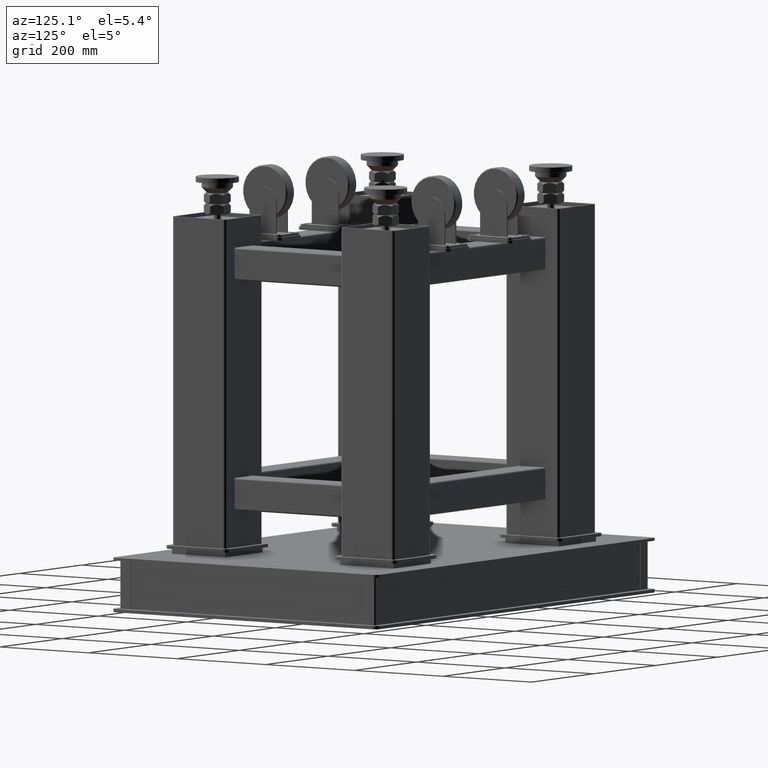
[diagram: clean part render]
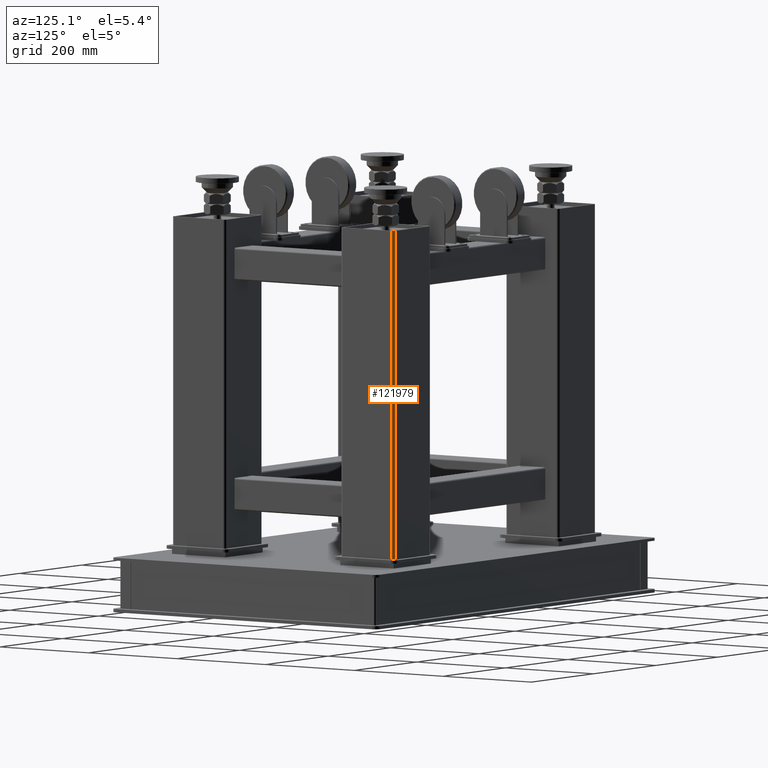
[diagram: same view with one face highlighted and labeled with its STEP entity id]
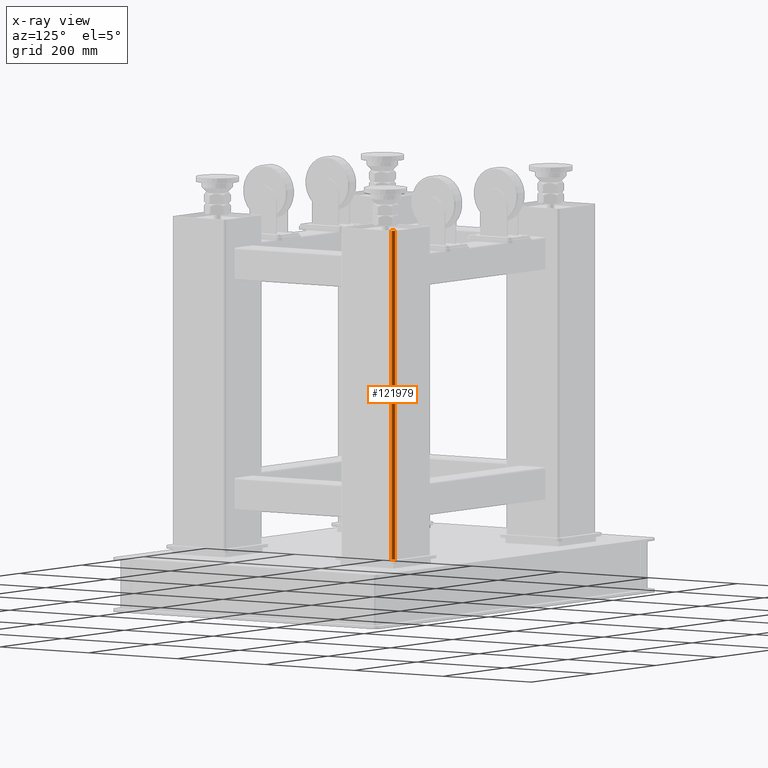
[diagram: x-ray of the same camera — body ghosted, the highlighted face saturated]
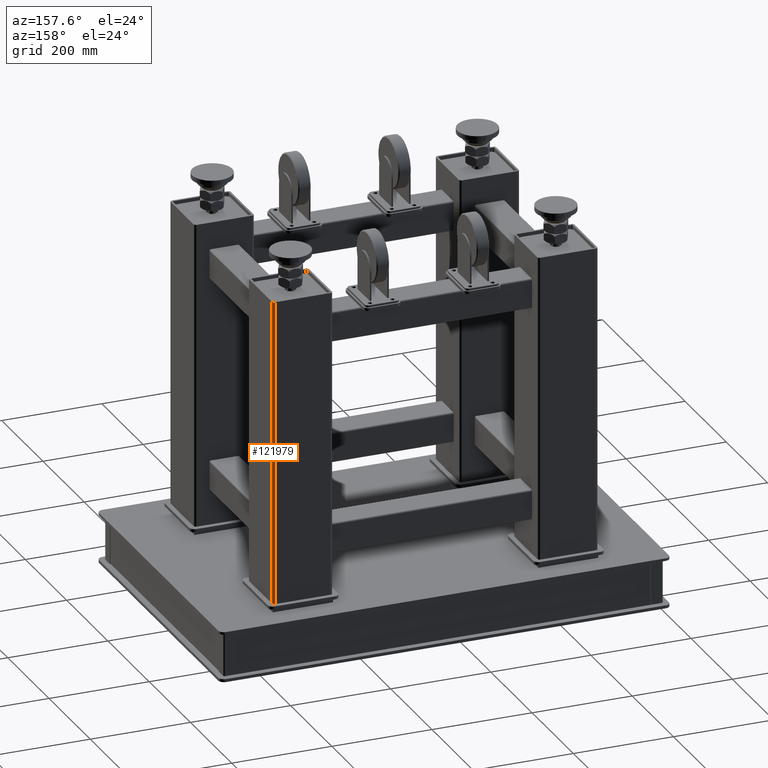
[diagram: same view with one face highlighted and labeled with its STEP entity id]
A machine part, auxiliary view. The second image highlights one B-rep face of the part: STEP entity #121979.
The next image is the same camera in x-ray: the body ghosted, the highlighted face saturated — about 0% of this face is hidden behind the body in this view.
A second angle (auxiliary view) of the same face is appended — the face is thin or edge-on in the first view.
In plain terms, the highlighted cylindrical surface (edge-blend (fillet) strip) has radius 5 mm, axis along (-0, -0, -1).
Its self-contained STEP definition (entity closure, byte-faithful):
#2183 = AXIS2_PLACEMENT_3D ( 'NONE', #120103, #71629, #14176 ) ;
#4592 = ORIENTED_EDGE ( 'NONE', *, *, #110936, .T. ) ;
#14176 = DIRECTION ( 'NONE',  ( -1.000000000000000000, 0.000000000000000000, 0.000000000000000000 ) ) ;
#15644 = FACE_OUTER_BOUND ( 'NONE', #74096, .T. ) ;
#17891 = DIRECTION ( 'NONE',  ( -1.000000000000000000, 0.000000000000000000, 0.000000000000000000 ) ) ;
#23935 = ORIENTED_EDGE ( 'NONE', *, *, #55228, .F. ) ;
#26554 = CYLINDRICAL_SURFACE ( 'NONE', #51657, 5.000000000000004441 ) ;
#37530 = VERTEX_POINT ( 'NONE', #67026 ) ;
#37836 = CARTESIAN_POINT ( 'NONE',  ( -432.3579775280901458, 447.9244194756556112, -345.5000000000000568 ) ) ;
#39051 = DIRECTION ( 'NONE',  ( -0.000000000000000000, -0.000000000000000000, -1.000000000000000000 ) ) ;
#47260 = DIRECTION ( 'NONE',  ( 0.000000000000000000, 0.000000000000000000, 1.000000000000000000 ) ) ;
#47587 = EDGE_CURVE ( 'NONE', #37530, #100153, #49885, .T. ) ;
#49113 = CIRCLE ( 'NONE', #2183, 5.000000000000004441 ) ;
#49885 = LINE ( 'NONE', #98879, #79077 ) ;
#51657 = AXIS2_PLACEMENT_3D ( 'NONE', #99126, #96602, #87006 ) ;
#55228 = EDGE_CURVE ( 'NONE', #37530, #105784, #49113, .T. ) ;
#58156 = DIRECTION ( 'NONE',  ( -0.000000000000000000, 0.000000000000000000, 1.000000000000000000 ) ) ;
#58748 = EDGE_CURVE ( 'NONE', #66100, #105784, #64011, .T. ) ;
#64011 = LINE ( 'NONE', #106530, #90922 ) ;
#66100 = VERTEX_POINT ( 'NONE', #37836 ) ;
#67026 = CARTESIAN_POINT ( 'NONE',  ( -427.3579775280900890, 442.9244194756556112, 264.5000000000000000 ) ) ;
#67893 = CIRCLE ( 'NONE', #114778, 5.000000000000004441 ) ;
#71629 = DIRECTION ( 'NONE',  ( 0.000000000000000000, 0.000000000000000000, 1.000000000000000000 ) ) ;
#74096 = EDGE_LOOP ( 'NONE', ( #117921, #23935, #116705, #4592 ) ) ;
#79077 = VECTOR ( 'NONE', #39051, 1000.000000000000000 ) ;
#85403 = CARTESIAN_POINT ( 'NONE',  ( -427.3579775280900890, 442.9244194756556112, -345.5000000000000568 ) ) ;
#87006 = DIRECTION ( 'NONE',  ( -1.000000000000000000, 0.000000000000000000, 0.000000000000000000 ) ) ;
#87929 = CARTESIAN_POINT ( 'NONE',  ( -432.3579775280900890, 442.9244194756556112, -345.5000000000000568 ) ) ;
#90922 = VECTOR ( 'NONE', #58156, 1000.000000000000000 ) ;
#96602 = DIRECTION ( 'NONE',  ( -0.000000000000000000, -0.000000000000000000, -1.000000000000000000 ) ) ;
#98879 = CARTESIAN_POINT ( 'NONE',  ( -427.3579775280900890, 442.9244194756556112, 183.5000000000000000 ) ) ;
#99126 = CARTESIAN_POINT ( 'NONE',  ( -432.3579775280900890, 442.9244194756556112, 183.5000000000000000 ) ) ;
#100153 = VERTEX_POINT ( 'NONE', #85403 ) ;
#103639 = CARTESIAN_POINT ( 'NONE',  ( -432.3579775280901458, 447.9244194756556112, 264.5000000000000000 ) ) ;
#105784 = VERTEX_POINT ( 'NONE', #103639 ) ;
#106530 = CARTESIAN_POINT ( 'NONE',  ( -432.3579775280901458, 447.9244194756556112, 183.5000000000000000 ) ) ;
#110936 = EDGE_CURVE ( 'NONE', #100153, #66100, #67893, .T. ) ;
#114778 = AXIS2_PLACEMENT_3D ( 'NONE', #87929, #47260, #17891 ) ;
#116705 = ORIENTED_EDGE ( 'NONE', *, *, #47587, .T. ) ;
#117921 = ORIENTED_EDGE ( 'NONE', *, *, #58748, .T. ) ;
#120103 = CARTESIAN_POINT ( 'NONE',  ( -432.3579775280900890, 442.9244194756556112, 264.5000000000000000 ) ) ;
#121979 = ADVANCED_FACE ( 'NONE', ( #15644 ), #26554, .T. ) ;